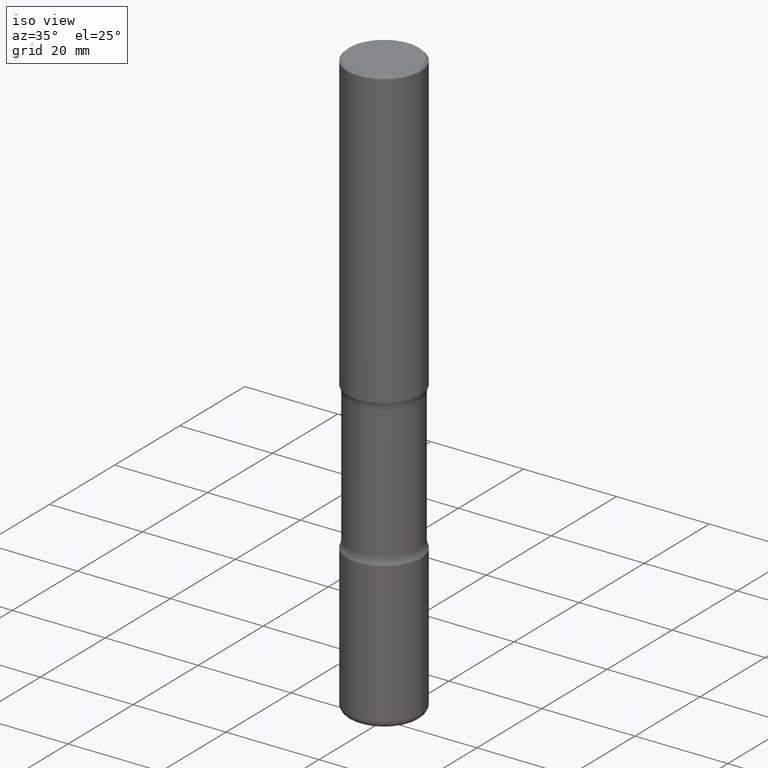
[diagram: clean part render]
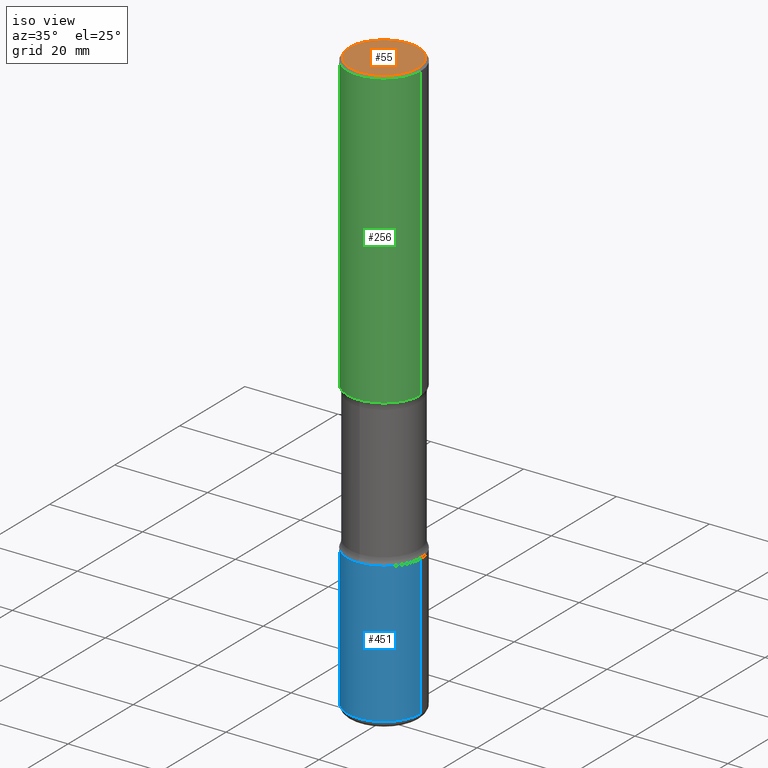
[diagram: same view with three faces highlighted in distinct colors, each labeled with its STEP entity id]
A machine part, iso view with three faces highlighted in distinct colors.
Their STEP definitions:

[orange] entity #55 — the highlighted planar face has unit normal (0, -0, -1).
#9 = AXIS2_PLACEMENT_3D ( 'NONE', #40, #377, #251 ) ;
#24 = EDGE_CURVE ( 'NONE', #469, #311, #373, .T. ) ;
#25 = DIRECTION ( 'NONE',  ( -1.000000000000000000, 6.982962677686265922E-15, -4.876176775795935793E-29 ) ) ;
#40 = CARTESIAN_POINT ( 'NONE',  ( -1.043851414335219820E-46, 1.490343170380447200E-32, 4.268512490100411279E-18 ) ) ;
#50 = AXIS2_PLACEMENT_3D ( 'NONE', #178, #541, #25 ) ;
#55 = ADVANCED_FACE ( 'NONE', ( #307 ), #187, .F. ) ;
#78 = EDGE_LOOP ( 'NONE', ( #528, #216 ) ) ;
#178 = CARTESIAN_POINT ( 'NONE',  ( 2.042516583223231356E-15, 0.2924999999999998157, -1.019124035366569212E-15 ) ) ;
#187 = PLANE ( 'NONE',  #50 ) ;
#216 = ORIENTED_EDGE ( 'NONE', *, *, #326, .T. ) ;
#251 = DIRECTION ( 'NONE',  ( 1.000000000000000000, -6.982962677686266711E-15, 4.876067333457692840E-29 ) ) ;
#258 = DIRECTION ( 'NONE',  ( -2.445468806185136597E-29, 3.491481338843145583E-15, 1.000000000000000000 ) ) ;
#287 = CIRCLE ( 'NONE', #410, 0.2924999999999998157 ) ;
#307 = FACE_OUTER_BOUND ( 'NONE', #78, .T. ) ;
#311 = VERTEX_POINT ( 'NONE', #529 ) ;
#326 = EDGE_CURVE ( 'NONE', #311, #469, #287, .T. ) ;
#373 = CIRCLE ( 'NONE', #9, 0.2924999999999998157 ) ;
#377 = DIRECTION ( 'NONE',  ( -2.445468806185136597E-29, 3.491481338843145583E-15, 1.000000000000000000 ) ) ;
#410 = AXIS2_PLACEMENT_3D ( 'NONE', #543, #258, #446 ) ;
#446 = DIRECTION ( 'NONE',  ( 1.000000000000000000, -6.982962677686266711E-15, 4.876067333457692840E-29 ) ) ;
#459 = CARTESIAN_POINT ( 'NONE',  ( -0.2924999999999998157, 2.077431396611663005E-15, 4.268512490086005323E-18 ) ) ;
#469 = VERTEX_POINT ( 'NONE', #459 ) ;
#528 = ORIENTED_EDGE ( 'NONE', *, *, #24, .T. ) ;
#529 = CARTESIAN_POINT ( 'NONE',  ( 0.2924999999999998157, -2.110215457714318748E-15, 4.268512490114932791E-18 ) ) ;
#541 = DIRECTION ( 'NONE',  ( 2.438088387897960049E-29, -3.491481338843145188E-15, -1.000000000000000000 ) ) ;
#543 = CARTESIAN_POINT ( 'NONE',  ( -1.043851414335219820E-46, 1.490343170380447200E-32, 4.268512490100411279E-18 ) ) ;

[blue] entity #451 — the highlighted cylindrical surface (partial cylindrical patch) has radius 7.9375 mm, axis along (-0, 0, 1).
#17 = CARTESIAN_POINT ( 'NONE',  ( -0.3125000000000002220, 2.220446049250314659E-15, -1.537167215704659073E-29 ) ) ;
#20 = AXIS2_PLACEMENT_3D ( 'NONE', #231, #402, #407 ) ;
#75 = EDGE_LOOP ( 'NONE', ( #353, #194, #391, #215 ) ) ;
#82 = LINE ( 'NONE', #17, #335 ) ;
#99 = DIRECTION ( 'NONE',  ( -2.445468806185136597E-29, 3.491481338843145583E-15, 1.000000000000000000 ) ) ;
#100 = CARTESIAN_POINT ( 'NONE',  ( 0.3125000000000000000, -1.943009365066209992E-14, -4.940000000000001279 ) ) ;
#101 = DIRECTION ( 'NONE',  ( -2.445468806185136597E-29, 3.491481338843145583E-15, 1.000000000000000000 ) ) ;
#104 = CARTESIAN_POINT ( 'NONE',  ( 0.000000000000000000, 0.000000000000000000, 0.000000000000000000 ) ) ;
#124 = EDGE_CURVE ( 'NONE', #504, #323, #135, .T. ) ;
#135 = CIRCLE ( 'NONE', #20, 0.3125000000000002776 ) ;
#147 = VECTOR ( 'NONE', #327, 39.37007874015748143 ) ;
#181 = DIRECTION ( 'NONE',  ( -2.445468806185136877E-29, 3.491481338843145188E-15, 1.000000000000000000 ) ) ;
#189 = LINE ( 'NONE', #406, #147 ) ;
#191 = DIRECTION ( 'NONE',  ( 1.000000000000000000, -6.982962677686266711E-15, 4.876176775795936353E-29 ) ) ;
#194 = ORIENTED_EDGE ( 'NONE', *, *, #124, .T. ) ;
#214 = EDGE_CURVE ( 'NONE', #323, #468, #189, .T. ) ;
#215 = ORIENTED_EDGE ( 'NONE', *, *, #415, .F. ) ;
#231 = CARTESIAN_POINT ( 'NONE',  ( 1.208061590255457820E-28, -1.724791781388514630E-14, -4.940000000000001279 ) ) ;
#323 = VERTEX_POINT ( 'NONE', #100 ) ;
#327 = DIRECTION ( 'NONE',  ( -2.445468806185136877E-29, 3.491481338843145188E-15, 1.000000000000000000 ) ) ;
#335 = VECTOR ( 'NONE', #181, 39.37007874015748143 ) ;
#352 = DIRECTION ( 'NONE',  ( 1.000000000000000000, -6.982962677686265133E-15, 0.000000000000000000 ) ) ;
#353 = ORIENTED_EDGE ( 'NONE', *, *, #405, .F. ) ;
#378 = AXIS2_PLACEMENT_3D ( 'NONE', #554, #101, #352 ) ;
#391 = ORIENTED_EDGE ( 'NONE', *, *, #214, .T. ) ;
#402 = DIRECTION ( 'NONE',  ( -2.445468806185136597E-29, 3.491481338843145583E-15, 1.000000000000000000 ) ) ;
#403 = CYLINDRICAL_SURFACE ( 'NONE', #464, 0.3125000000000002220 ) ;
#405 = EDGE_CURVE ( 'NONE', #504, #411, #82, .T. ) ;
#406 = CARTESIAN_POINT ( 'NONE',  ( 0.3125000000000002220, -2.182175836776959925E-15, 1.523805242436231196E-29 ) ) ;
#407 = DIRECTION ( 'NONE',  ( 1.000000000000000000, -6.982962677686262766E-15, 0.000000000000000000 ) ) ;
#408 = CARTESIAN_POINT ( 'NONE',  ( 0.3125000000000001665, -1.527523085743875418E-14, -3.749999999999999556 ) ) ;
#411 = VERTEX_POINT ( 'NONE', #437 ) ;
#415 = EDGE_CURVE ( 'NONE', #411, #468, #544, .T. ) ;
#437 = CARTESIAN_POINT ( 'NONE',  ( -0.3125000000000001665, -1.295004036802315562E-14, -3.749999999999999556 ) ) ;
#451 = ADVANCED_FACE ( 'NONE', ( #549 ), #403, .T. ) ;
#464 = AXIS2_PLACEMENT_3D ( 'NONE', #104, #99, #191 ) ;
#468 = VERTEX_POINT ( 'NONE', #408 ) ;
#504 = VERTEX_POINT ( 'NONE', #552 ) ;
#544 = CIRCLE ( 'NONE', #378, 0.3125000000000001665 ) ;
#549 = FACE_OUTER_BOUND ( 'NONE', #75, .T. ) ;
#552 = CARTESIAN_POINT ( 'NONE',  ( -0.3125000000000000000, -1.502747176463483322E-14, -4.940000000000001279 ) ) ;
#554 = CARTESIAN_POINT ( 'NONE',  ( 9.170508023194261117E-29, -1.309305502066179584E-14, -3.749999999999999556 ) ) ;

[green] entity #256 — the highlighted cylindrical surface (partial cylindrical patch) has radius 7.9375 mm, axis along (-0, 0, 1).
#15 = CARTESIAN_POINT ( 'NONE',  ( 4.890937612370289799E-31, -6.982962677686315028E-17, -0.02000000000000006981 ) ) ;
#16 = VERTEX_POINT ( 'NONE', #245 ) ;
#45 = ORIENTED_EDGE ( 'NONE', *, *, #94, .T. ) ;
#49 = CARTESIAN_POINT ( 'NONE',  ( -0.3125000000000000000, 2.220446049250313081E-15, -1.537167215704658232E-29 ) ) ;
#51 = VECTOR ( 'NONE', #515, 39.37007874015748143 ) ;
#59 = DIRECTION ( 'NONE',  ( 1.000000000000000000, -6.982962677686266711E-15, 0.000000000000000000 ) ) ;
#70 = LINE ( 'NONE', #560, #51 ) ;
#85 = DIRECTION ( 'NONE',  ( 1.000000000000000000, -6.982962677686266711E-15, 0.000000000000000000 ) ) ;
#94 = EDGE_CURVE ( 'NONE', #111, #325, #114, .T. ) ;
#110 = VERTEX_POINT ( 'NONE', #355 ) ;
#111 = VERTEX_POINT ( 'NONE', #150 ) ;
#114 = CIRCLE ( 'NONE', #333, 0.3125000000000002220 ) ;
#150 = CARTESIAN_POINT ( 'NONE',  ( -0.3125000000000002220, -2.178820437692046306E-15, -2.499999999999999556 ) ) ;
#171 = CARTESIAN_POINT ( 'NONE',  ( 0.000000000000000000, 0.000000000000000000, 0.000000000000000000 ) ) ;
#182 = DIRECTION ( 'NONE',  ( -2.445468806185136597E-29, 3.491481338843145583E-15, 1.000000000000000000 ) ) ;
#192 = FACE_OUTER_BOUND ( 'NONE', #263, .T. ) ;
#196 = AXIS2_PLACEMENT_3D ( 'NONE', #171, #558, #294 ) ;
#227 = ORIENTED_EDGE ( 'NONE', *, *, #520, .T. ) ;
#235 = VECTOR ( 'NONE', #314, 39.37007874015748143 ) ;
#245 = CARTESIAN_POINT ( 'NONE',  ( -0.3124999999999998890, 2.112346210000094260E-15, -0.02000000000000006981 ) ) ;
#256 = ADVANCED_FACE ( 'NONE', ( #192 ), #365, .T. ) ;
#262 = CARTESIAN_POINT ( 'NONE',  ( 0.3125000000000002220, -1.091087918388482329E-14, -2.499999999999999556 ) ) ;
#263 = EDGE_LOOP ( 'NONE', ( #522, #45, #227, #428 ) ) ;
#294 = DIRECTION ( 'NONE',  ( 1.000000000000000000, -6.982962677686266711E-15, 4.876176775795936353E-29 ) ) ;
#299 = DIRECTION ( 'NONE',  ( -2.445468806185136597E-29, 3.491481338843145583E-15, 1.000000000000000000 ) ) ;
#314 = DIRECTION ( 'NONE',  ( -2.445468806185136877E-29, 3.491481338843145188E-15, 1.000000000000000000 ) ) ;
#325 = VERTEX_POINT ( 'NONE', #262 ) ;
#333 = AXIS2_PLACEMENT_3D ( 'NONE', #394, #182, #59 ) ;
#355 = CARTESIAN_POINT ( 'NONE',  ( 0.3124999999999998890, -2.213735251080466123E-15, -0.02000000000000006981 ) ) ;
#365 = CYLINDRICAL_SURFACE ( 'NONE', #196, 0.3125000000000000000 ) ;
#388 = CIRCLE ( 'NONE', #472, 0.3124999999999998890 ) ;
#394 = CARTESIAN_POINT ( 'NONE',  ( 6.113672015462840371E-29, -8.728703347107863365E-15, -2.499999999999999556 ) ) ;
#421 = EDGE_CURVE ( 'NONE', #16, #110, #388, .T. ) ;
#422 = EDGE_CURVE ( 'NONE', #111, #16, #473, .T. ) ;
#428 = ORIENTED_EDGE ( 'NONE', *, *, #421, .F. ) ;
#472 = AXIS2_PLACEMENT_3D ( 'NONE', #15, #299, #85 ) ;
#473 = LINE ( 'NONE', #49, #235 ) ;
#515 = DIRECTION ( 'NONE',  ( -2.445468806185136877E-29, 3.491481338843145188E-15, 1.000000000000000000 ) ) ;
#520 = EDGE_CURVE ( 'NONE', #325, #110, #70, .T. ) ;
#522 = ORIENTED_EDGE ( 'NONE', *, *, #422, .F. ) ;
#558 = DIRECTION ( 'NONE',  ( -2.445468806185136597E-29, 3.491481338843145583E-15, 1.000000000000000000 ) ) ;
#560 = CARTESIAN_POINT ( 'NONE',  ( 0.3125000000000000000, -2.182175836776958347E-15, 1.523805242436230075E-29 ) ) ;